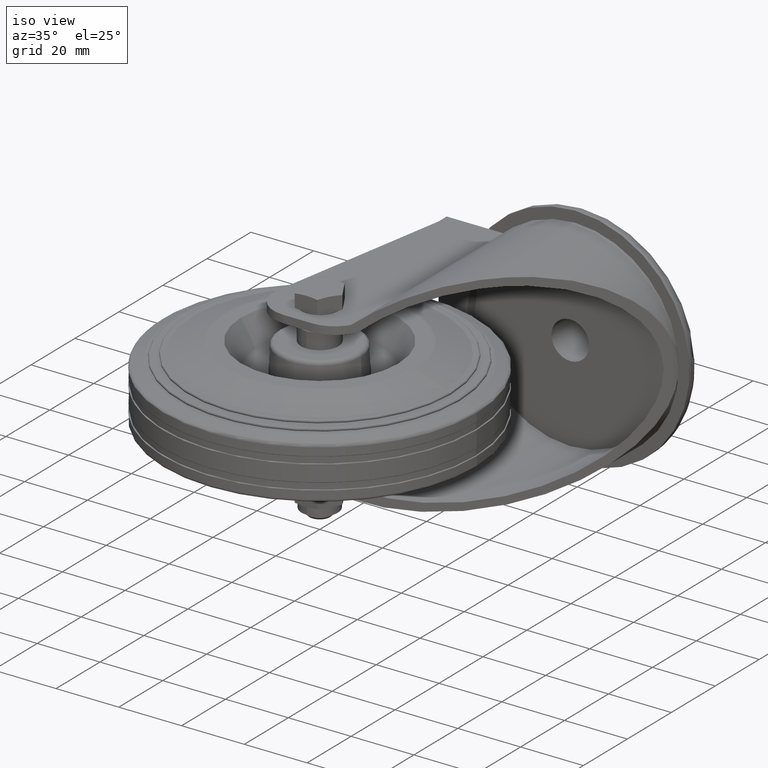
[diagram: clean part render]
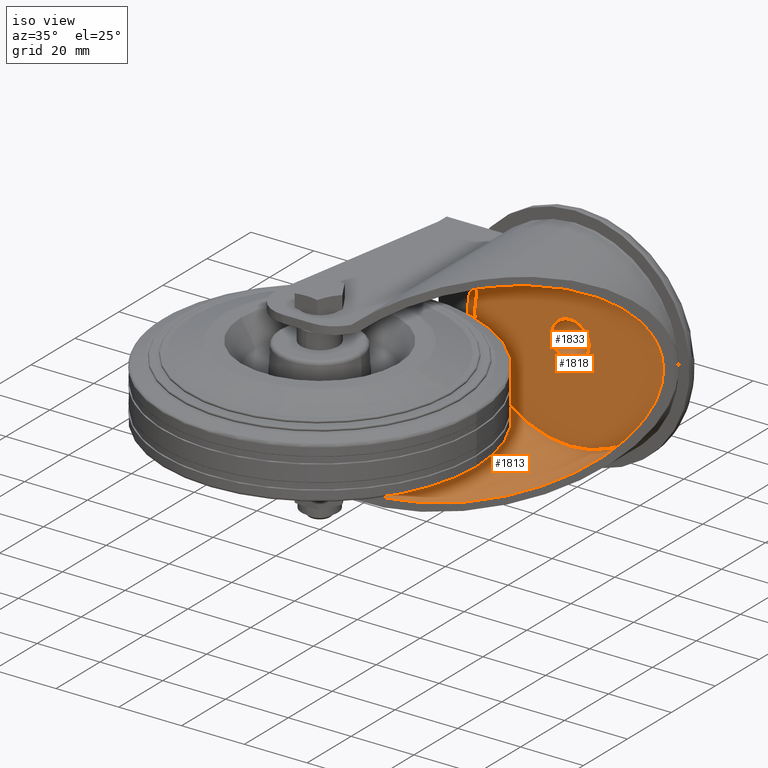
[diagram: same view with one multi-face feature highlighted, each face labeled with its STEP entity id]
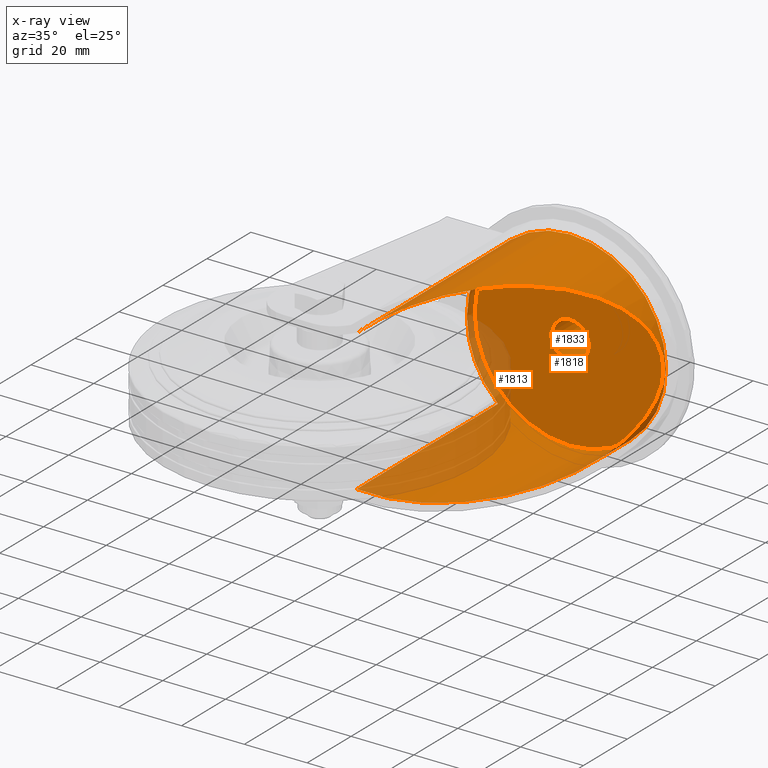
[diagram: x-ray of the same camera — body ghosted, the whole feature saturated]
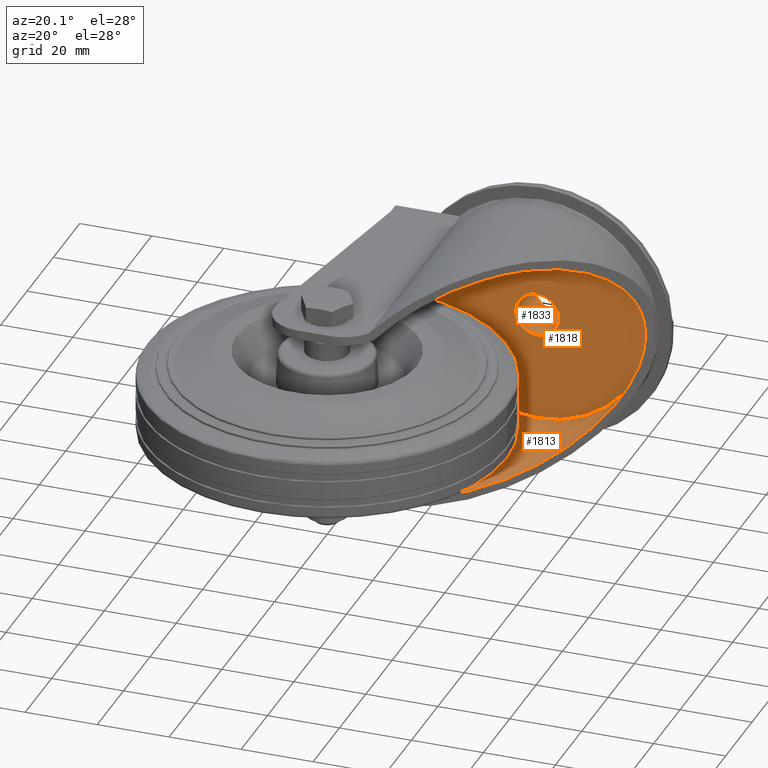
[diagram: same view with one multi-face feature highlighted, each face labeled with its STEP entity id]
A machine part, iso view. The highlighted faces form ONE feature: a stepped (counterbored) hole: 2 coaxial cylindrical walls of radii 6 -> 30.5 mm joined by 1 annular planar shoulder face(s). The faces share edges in the B-rep.
The next image is the same camera in x-ray: the body ghosted and the whole hole feature saturated, so the bore chain is visible through the body.
A second angle (auxiliary view) of the same feature is appended — it is thin or edge-on in the first view.
Their STEP definitions:
[1] entity #1813 (Cylinder):
#269=FACE_OUTER_BOUND('',#397,.T.);
#397=EDGE_LOOP('',(#1306,#1307,#1308,#1309,#1310,#1311,#1312,#1313));
#553=CIRCLE('',#2069,30.5);
#554=CIRCLE('',#2070,30.5);
#679=ELLIPSE('',#2056,50.1597158237745,30.5);
#680=ELLIPSE('',#2057,50.1597158237745,30.5);
#706=LINE('',#3023,#781);
#707=LINE('',#3025,#782);
#708=LINE('',#3028,#783);
#781=VECTOR('',#2400,30.5);
#782=VECTOR('',#2401,1000.);
#783=VECTOR('',#2404,1000.);
#846=VERTEX_POINT('',#2975);
#847=VERTEX_POINT('',#2977);
#848=VERTEX_POINT('',#2979);
#861=VERTEX_POINT('',#3021);
#862=VERTEX_POINT('',#3024);
#863=VERTEX_POINT('',#3026);
#1009=EDGE_CURVE('',#846,#847,#679,.F.);
#1010=EDGE_CURVE('',#847,#848,#680,.F.);
#1032=EDGE_CURVE('',#861,#861,#553,.T.);
#1033=EDGE_CURVE('',#861,#847,#706,.T.);
#1034=EDGE_CURVE('',#846,#862,#707,.F.);
#1035=EDGE_CURVE('',#862,#863,#554,.T.);
#1036=EDGE_CURVE('',#863,#848,#708,.T.);
#1306=ORIENTED_EDGE('',*,*,#1032,.F.);
#1307=ORIENTED_EDGE('',*,*,#1033,.T.);
#1308=ORIENTED_EDGE('',*,*,#1009,.F.);
#1309=ORIENTED_EDGE('',*,*,#1034,.T.);
#1310=ORIENTED_EDGE('',*,*,#1035,.T.);
#1311=ORIENTED_EDGE('',*,*,#1036,.T.);
#1312=ORIENTED_EDGE('',*,*,#1010,.F.);
#1313=ORIENTED_EDGE('',*,*,#1033,.F.);
#1783=CYLINDRICAL_SURFACE('',#2068,30.5);
#1813=ADVANCED_FACE('',(#269),#1783,.F.);
#2056=AXIS2_PLACEMENT_3D('',#2978,#2355,#2356);
#2057=AXIS2_PLACEMENT_3D('',#2980,#2357,#2358);
#2068=AXIS2_PLACEMENT_3D('',#3020,#2396,#2397);
#2069=AXIS2_PLACEMENT_3D('',#3022,#2398,#2399);
#2070=AXIS2_PLACEMENT_3D('',#3027,#2402,#2403);
#2355=DIRECTION('center_axis',(0.79389285693816,-0.608057671362319,0.));
#2356=DIRECTION('ref_axis',(-0.608057671362319,-0.79389285693816,0.));
#2357=DIRECTION('center_axis',(0.79389285693816,-0.608057671362319,0.));
#2358=DIRECTION('ref_axis',(-0.608057671362319,-0.79389285693816,0.));
#2396=DIRECTION('center_axis',(0.,-1.,0.));
#2397=DIRECTION('ref_axis',(0.,0.,-1.));
#2398=DIRECTION('center_axis',(0.,-1.,0.));
#2399=DIRECTION('ref_axis',(0.,0.,-1.));
#2400=DIRECTION('',(0.,-1.,0.));
#2401=DIRECTION('',(0.,-1.,0.));
#2402=DIRECTION('center_axis',(0.,-1.,0.));
#2403=DIRECTION('ref_axis',(0.,0.,-1.));
#2404=DIRECTION('',(0.,-1.,0.));
#2975=CARTESIAN_POINT('',(14.408739718026,-3.76987413521415,22.5));
#2977=CARTESIAN_POINT('',(35.,23.1145074343638,30.5));
#2978=CARTESIAN_POINT('Origin',(35.,23.1145074343638,0.));
#2979=CARTESIAN_POINT('',(14.408739718026,-3.76987413521415,-22.5));
#2980=CARTESIAN_POINT('Origin',(35.,23.1145074343638,0.));
#3020=CARTESIAN_POINT('Origin',(35.,-10.,0.));
#3021=CARTESIAN_POINT('',(35.,64.,30.5));
#3022=CARTESIAN_POINT('Origin',(35.,64.,0.));
#3023=CARTESIAN_POINT('',(35.,-10.,30.5));
#3024=CARTESIAN_POINT('',(14.408739718026,60.5,22.5));
#3025=CARTESIAN_POINT('',(14.408739718026,-10.,22.5));
#3026=CARTESIAN_POINT('',(14.408739718026,60.5,-22.5));
#3027=CARTESIAN_POINT('Origin',(35.,60.5,0.));
#3028=CARTESIAN_POINT('',(14.408739718026,-10.,-22.5));
[2] entity #1833 (Cylinder):
#289=FACE_OUTER_BOUND('',#426,.T.);
#426=EDGE_LOOP('',(#1401,#1402,#1403,#1404));
#557=CIRCLE('',#2078,6.);
#561=CIRCLE('',#2088,6.);
#722=LINE('',#3094,#797);
#797=VECTOR('',#2490,6.);
#868=VERTEX_POINT('',#3046);
#872=VERTEX_POINT('',#3064);
#1045=EDGE_CURVE('',#868,#868,#557,.F.);
#1053=EDGE_CURVE('',#872,#872,#561,.T.);
#1066=EDGE_CURVE('',#872,#868,#722,.T.);
#1401=ORIENTED_EDGE('',*,*,#1053,.F.);
#1402=ORIENTED_EDGE('',*,*,#1066,.T.);
#1403=ORIENTED_EDGE('',*,*,#1045,.F.);
#1404=ORIENTED_EDGE('',*,*,#1066,.F.);
#1789=CYLINDRICAL_SURFACE('',#2106,6.);
#1833=ADVANCED_FACE('',(#289),#1789,.F.);
#2078=AXIS2_PLACEMENT_3D('',#3047,#2425,#2426);
#2088=AXIS2_PLACEMENT_3D('',#3065,#2449,#2450);
#2106=AXIS2_PLACEMENT_3D('',#3093,#2488,#2489);
#2425=DIRECTION('center_axis',(0.,-1.,0.));
#2426=DIRECTION('ref_axis',(0.,0.,-1.));
#2449=DIRECTION('center_axis',(0.,-1.,0.));
#2450=DIRECTION('ref_axis',(0.,0.,-1.));
#2488=DIRECTION('center_axis',(0.,-1.,0.));
#2489=DIRECTION('ref_axis',(0.,0.,-1.));
#2490=DIRECTION('',(0.,-1.,0.));
#3046=CARTESIAN_POINT('',(35.,64.,6.));
#3047=CARTESIAN_POINT('Origin',(35.,64.,0.));
#3064=CARTESIAN_POINT('',(35.,78.,6.));
#3065=CARTESIAN_POINT('Origin',(35.,78.,0.));
#3093=CARTESIAN_POINT('Origin',(35.,58.,0.));
#3094=CARTESIAN_POINT('',(35.,58.,6.));
[3] entity #1818 (Plane):
#182=FACE_BOUND('',#405,.T.);
#217=PLANE('',#2077);
#274=FACE_OUTER_BOUND('',#404,.T.);
#404=EDGE_LOOP('',(#1342));
#405=EDGE_LOOP('',(#1343));
#553=CIRCLE('',#2069,30.5);
#557=CIRCLE('',#2078,6.);
#861=VERTEX_POINT('',#3021);
#868=VERTEX_POINT('',#3046);
#1032=EDGE_CURVE('',#861,#861,#553,.T.);
#1045=EDGE_CURVE('',#868,#868,#557,.F.);
#1342=ORIENTED_EDGE('',*,*,#1032,.T.);
#1343=ORIENTED_EDGE('',*,*,#1045,.T.);
#1818=ADVANCED_FACE('',(#274,#182),#217,.T.);
#2069=AXIS2_PLACEMENT_3D('',#3022,#2398,#2399);
#2077=AXIS2_PLACEMENT_3D('',#3045,#2423,#2424);
#2078=AXIS2_PLACEMENT_3D('',#3047,#2425,#2426);
#2398=DIRECTION('center_axis',(0.,-1.,0.));
#2399=DIRECTION('ref_axis',(0.,0.,-1.));
#2423=DIRECTION('center_axis',(0.,-1.,0.));
#2424=DIRECTION('ref_axis',(0.,0.,-1.));
#2425=DIRECTION('center_axis',(0.,-1.,0.));
#2426=DIRECTION('ref_axis',(0.,0.,-1.));
#3021=CARTESIAN_POINT('',(35.,64.,30.5));
#3022=CARTESIAN_POINT('Origin',(35.,64.,0.));
#3045=CARTESIAN_POINT('Origin',(35.,64.,0.));
#3046=CARTESIAN_POINT('',(35.,64.,6.));
#3047=CARTESIAN_POINT('Origin',(35.,64.,0.));